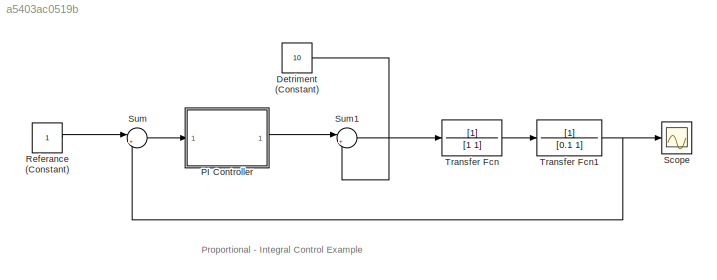
MODEL slx_a5403ac0519b
KIND model
CONFIG AbsTol = auto
CONFIG EnableMultiTasking = off
CONFIG FixedStep = auto
CONFIG MaxStep = auto
CONFIG MinStep = auto
CONFIG RelTol = 1e-3
CONFIG SampleTimeConstraint = Unconstrained
CONFIG SolverName = VariableStepAuto
CONFIG StartTime = 0.0
CONFIG StopTime = 100
BLOCK [Constant]  Referance (Constant)
BLOCK [Constant] Detriment (Constant)
  Value = 10
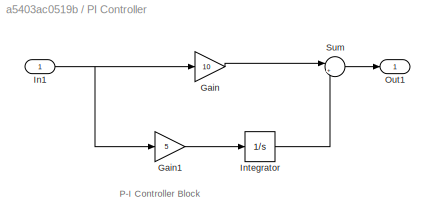
BLOCK [SubSystem] PI Controller
BLOCK [Gain] PI Controller/Gain
  Gain = 10
BLOCK [Gain] PI Controller/Gain1
  Gain = 5
BLOCK [Inport] PI Controller/In1
BLOCK [Integrator] PI Controller/Integrator
BLOCK [Outport] PI Controller/Out1
BLOCK [Sum] PI Controller/Sum
  Inputs = |++
BLOCK [Scope] Scope
  Floating = off
  NumInputPorts = 1
  ScopeSpecificationString = Simulink.scopes.TimeScopeBlockCfg('CurrentConfiguration', extmgr.ConfigurationSet(extmgr.Configuration('Core','General UI',true),extmgr.Configuration('Core','Source UI',true),extmgr.Configuration('Sources','WiredSimulink',true),extmgr.Configuration('Visuals','Time Domain',true,'SerializedDisplays',{struct('MinYLimReal','-0.25898','MaxYLimReal','2.3308','YLabelReal','','MinYLimMag','0.00000','MaxYL...<+1362ch>
BLOCK [Sum] Sum
  Inputs = |+-
BLOCK [Sum] Sum1
  Inputs = |++
BLOCK [TransferFcn] Transfer Fcn
  Denominator = [1 1]
BLOCK [TransferFcn] Transfer Fcn1
  Denominator = [0.1 1]
ANNOTATION (root): Proportional - Integral Control Example
ANNOTATION PI Controller: P-I Controller Block
LINE  Referance (Constant):1 -> Sum:1
LINE Detriment (Constant):1 -> Sum1:2
LINE PI Controller/Gain1:1 -> PI Controller/Integrator:1
LINE PI Controller/Gain:1 -> PI Controller/Sum:1
NET PI Controller/In1:1 -> PI Controller/Gain1:1, PI Controller/Gain:1
LINE PI Controller/Integrator:1 -> PI Controller/Sum:2
LINE PI Controller/Sum:1 -> PI Controller/Out1:1
LINE PI Controller:1 -> Sum1:1
LINE Sum1:1 -> Transfer Fcn:1
LINE Sum:1 -> PI Controller:1
NET Transfer Fcn1:1 -> Scope:1, Sum:2
LINE Transfer Fcn:1 -> Transfer Fcn1:1
note: NET lines group one-source signal fan-out (src -> all destinations, sorted); 1:1 wires keep LINE
